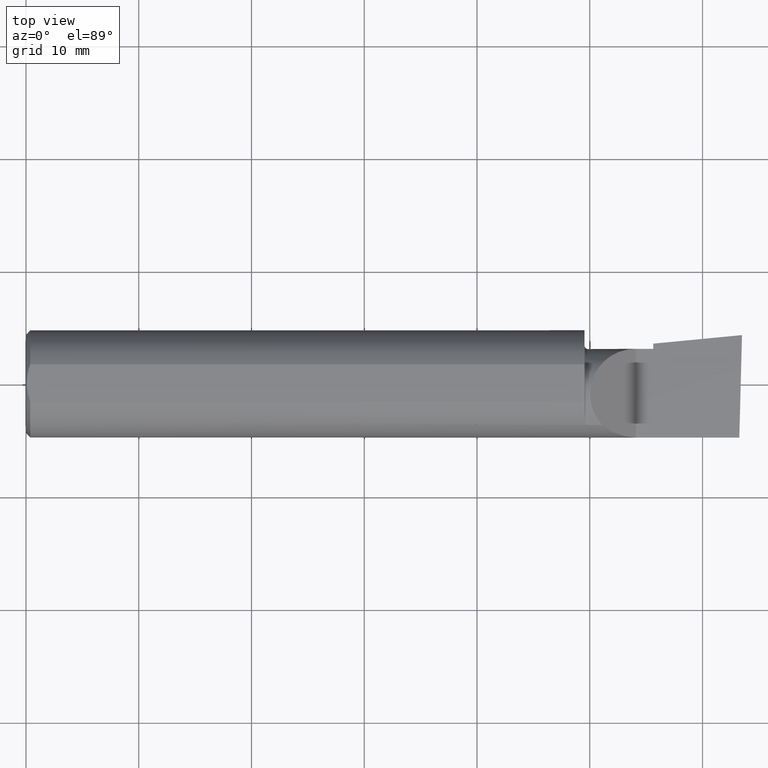
[diagram: clean part render]
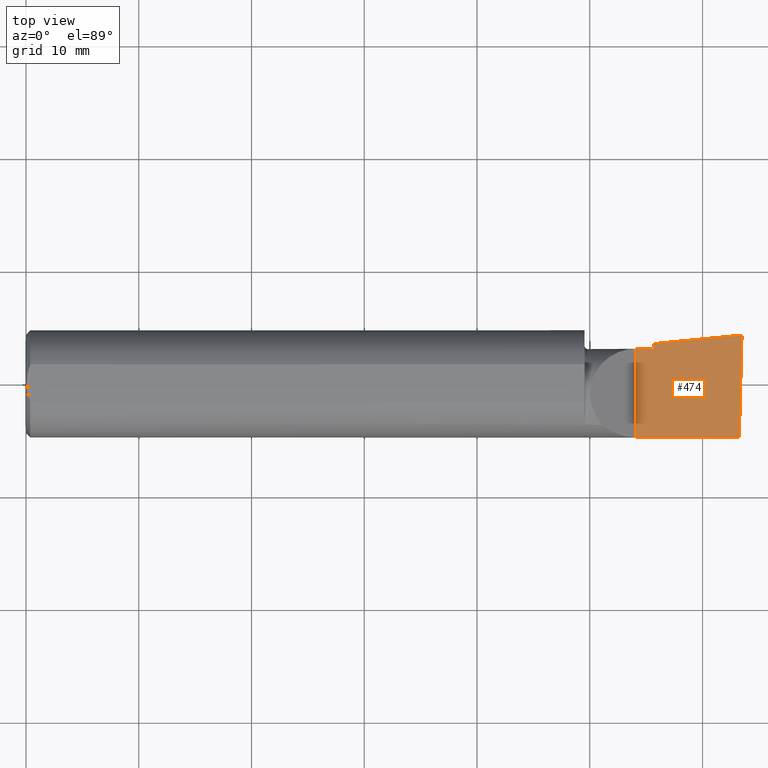
[diagram: same view with one face highlighted and labeled with its STEP entity id]
A machine part, top view. The second image highlights one B-rep face of the part: STEP entity #474.
In plain terms, the highlighted planar face has unit normal (-0, 0, -1).
Its self-contained STEP definition (entity closure, byte-faithful):
#25 = ORIENTED_EDGE ( 'NONE', *, *, #292, .F. ) ;
#44 = DIRECTION ( 'NONE',  ( 0.02617694830791552144, 0.9996573249755561497, -2.665804247648098212E-18 ) ) ;
#46 = CARTESIAN_POINT ( 'NONE',  ( 2.500000000000000000, -0.2500000000000000555, 6.829619984160658046E-17 ) ) ;
#47 = LINE ( 'NONE', #71, #171 ) ;
#57 = EDGE_LOOP ( 'NONE', ( #471, #437, #177, #397, #25, #398 ) ) ;
#62 = LINE ( 'NONE', #271, #256 ) ;
#66 = EDGE_CURVE ( 'NONE', #99, #215, #118, .T. ) ;
#69 = EDGE_CURVE ( 'NONE', #581, #432, #62, .T. ) ;
#71 = CARTESIAN_POINT ( 'NONE',  ( 1.093080678464946939E-18, 0.1226499999999999535, 3.267291166268304703E-16 ) ) ;
#72 = CARTESIAN_POINT ( 'NONE',  ( 2.189999999999999947, -0.2500000000000000555, 1.003418815229743595E-16 ) ) ;
#99 = VERTEX_POINT ( 'NONE', #111 ) ;
#111 = CARTESIAN_POINT ( 'NONE',  ( 2.189999999999999947, 0.1226499999999999674, 3.267291166268305196E-16 ) ) ;
#118 = LINE ( 'NONE', #72, #207 ) ;
#171 = VECTOR ( 'NONE', #297, 39.37007874015748143 ) ;
#177 = ORIENTED_EDGE ( 'NONE', *, *, #505, .F. ) ;
#199 = CARTESIAN_POINT ( 'NONE',  ( 3.377502344341257155E-32, -0.1873499999999999610, 3.267291166268304703E-16 ) ) ;
#207 = VECTOR ( 'NONE', #462, 39.37007874015748143 ) ;
#215 = VERTEX_POINT ( 'NONE', #255 ) ;
#216 = VECTOR ( 'NONE', #312, 39.37007874015748143 ) ;
#220 = PLANE ( 'NONE',  #502 ) ;
#231 = FACE_OUTER_BOUND ( 'NONE', #57, .T. ) ;
#234 = VECTOR ( 'NONE', #348, 39.37007874015748143 ) ;
#255 = CARTESIAN_POINT ( 'NONE',  ( 2.189999999999999947, 0.1408003950587674857, 3.286754617377316716E-16 ) ) ;
#256 = VECTOR ( 'NONE', #44, 39.37007874015748854 ) ;
#260 = CARTESIAN_POINT ( 'NONE',  ( 2.500000000000034195, 0.1706500000000318595, 9.290684216734176359E-14 ) ) ;
#271 = CARTESIAN_POINT ( 'NONE',  ( 2.488992440003207296, -0.2497117568972554158, 6.943408617627041469E-17 ) ) ;
#292 = EDGE_CURVE ( 'NONE', #375, #99, #47, .T. ) ;
#297 = DIRECTION ( 'NONE',  ( 1.000000000000000000, -6.829619984160658046E-18, 0.0000000000000000000 ) ) ;
#312 = DIRECTION ( 'NONE',  ( -0.0000000000000000000, 1.000000000000000000, -0.0000000000000000000 ) ) ;
#335 = LINE ( 'NONE', #380, #234 ) ;
#348 = DIRECTION ( 'NONE',  ( 0.9953961983671787417, 0.09584575252022456415, -1.028972571603813720E-16 ) ) ;
#375 = VERTEX_POINT ( 'NONE', #543 ) ;
#376 = VECTOR ( 'NONE', #548, 39.37007874015748143 ) ;
#379 = CARTESIAN_POINT ( 'NONE',  ( 2.129999999999999893, -0.1873499999999999888, 1.065442715258197396E-16 ) ) ;
#380 = CARTESIAN_POINT ( 'NONE',  ( 0.3393181374772690773, -0.03739999999999999575, 2.916527262322783564E-16 ) ) ;
#397 = ORIENTED_EDGE ( 'NONE', *, *, #66, .F. ) ;
#398 = ORIENTED_EDGE ( 'NONE', *, *, #483, .F. ) ;
#408 = CARTESIAN_POINT ( 'NONE',  ( 2.129999999999999893, -0.2500000000000000555, 1.065442715258197396E-16 ) ) ;
#412 = LINE ( 'NONE', #199, #376 ) ;
#428 = DIRECTION ( 'NONE',  ( -1.000000000000000000, 0.0000000000000000000, 1.033731667140896077E-16 ) ) ;
#432 = VERTEX_POINT ( 'NONE', #260 ) ;
#437 = ORIENTED_EDGE ( 'NONE', *, *, #69, .T. ) ;
#452 = LINE ( 'NONE', #408, #216 ) ;
#462 = DIRECTION ( 'NONE',  ( 6.829619984160658816E-18, 1.000000000000000000, -7.059994452165177242E-34 ) ) ;
#471 = ORIENTED_EDGE ( 'NONE', *, *, #557, .F. ) ;
#474 = ADVANCED_FACE ( 'NONE', ( #231 ), #220, .F. ) ;
#483 = EDGE_CURVE ( 'NONE', #568, #375, #452, .T. ) ;
#502 = AXIS2_PLACEMENT_3D ( 'NONE', #46, #522, #428 ) ;
#505 = EDGE_CURVE ( 'NONE', #215, #432, #335, .T. ) ;
#522 = DIRECTION ( 'NONE',  ( -1.033731667140896077E-16, 0.0000000000000000000, -1.000000000000000000 ) ) ;
#541 = CARTESIAN_POINT ( 'NONE',  ( 2.490625440078237940, -0.1873499999999999888, 6.926778495256700803E-17 ) ) ;
#543 = CARTESIAN_POINT ( 'NONE',  ( 2.129999999999999893, 0.1226499999999998841, 1.065442715258197396E-16 ) ) ;
#548 = DIRECTION ( 'NONE',  ( -1.000000000000000000, -0.0000000000000000000, -0.0000000000000000000 ) ) ;
#557 = EDGE_CURVE ( 'NONE', #581, #568, #412, .T. ) ;
#568 = VERTEX_POINT ( 'NONE', #379 ) ;
#581 = VERTEX_POINT ( 'NONE', #541 ) ;